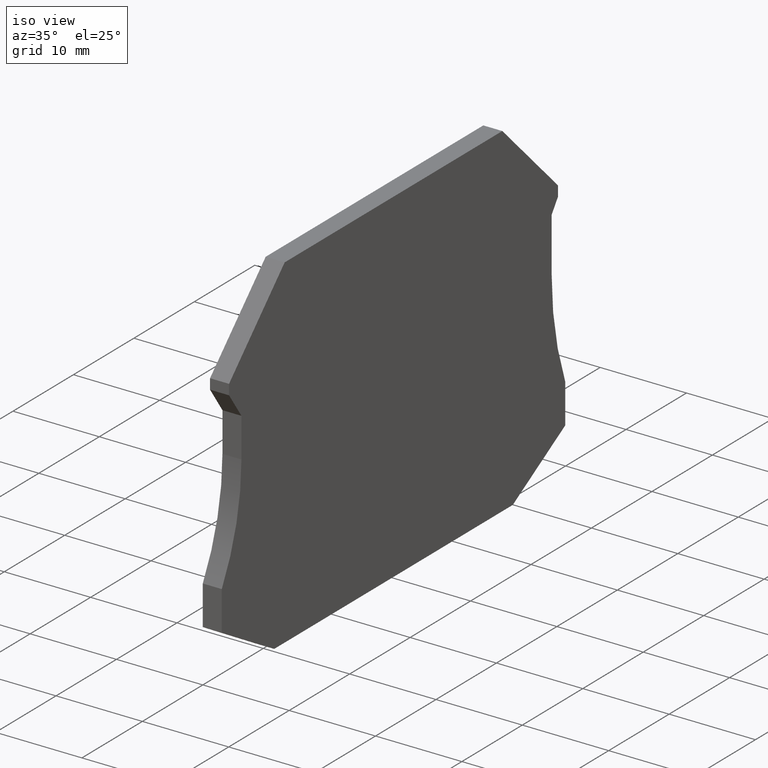
[diagram: clean part render]
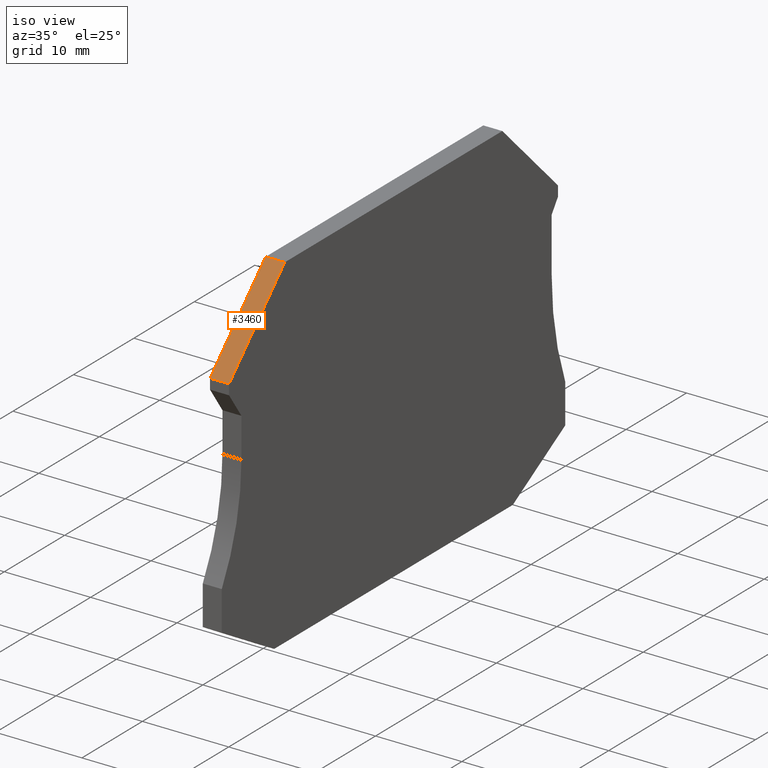
[diagram: same view with one face highlighted and labeled with its STEP entity id]
A machine part, iso view. The second image highlights one B-rep face of the part: STEP entity #3460.
In plain terms, the highlighted planar face has unit normal (-0, -0.7071, 0.7071).
Its self-contained STEP definition (entity closure, byte-faithful):
#850=CARTESIAN_POINT('',(16.3296808260526,-18.4500000000048,
1.58078386397419E-14));
#860=VERTEX_POINT('',#850);
#890=CARTESIAN_POINT('',(34.7796808260532,6.3948846218409E-14,
2.48083819314093E-13));
#900=DIRECTION('',(-0.707106781186466,-0.70710678118663,
-7.43849426498855E-15));
#910=VECTOR('',#900,1.);
#920=LINE('',#890,#910);
#930=CARTESIAN_POINT('',(7.12968082605067,-27.6500000000088,
-8.1682277343663E-14));
#940=VERTEX_POINT('',#930);
#950=EDGE_CURVE('',#860,#940,#920,.T.);
#2970=CARTESIAN_POINT('',(16.3296808260526,-18.4500000000048,
-2.8421709430404E-14));
#2980=DIRECTION('',(1.05655906439322E-14,1.05655906439346E-14,-1.));
#2990=VECTOR('',#2980,1.);
#3000=LINE('',#2970,#2990);
#3010=CARTESIAN_POINT('',(16.3296808260526,-18.4500000000048,
2.19999999999998));
#3020=VERTEX_POINT('',#3010);
#3030=EDGE_CURVE('',#3020,#860,#3000,.T.);
#3230=CARTESIAN_POINT('',(16.3296808260526,-18.4500000000048,
1.09999999999998));
#3240=DIRECTION('',(-0.70710678118663,0.707106781186466,0.));
#3250=DIRECTION('',(0.707106781186466,0.70710678118663,0.));
#3260=AXIS2_PLACEMENT_3D('',#3230,#3240,#3250);
#3270=PLANE('',#3260);
#3280=CARTESIAN_POINT('',(0.893553826060931,-33.886127,2.19999999999998)
);
#3290=DIRECTION('',(0.707106781186466,0.70710678118663,0.));
#3300=VECTOR('',#3290,1.);
#3310=LINE('',#3280,#3300);
#3320=CARTESIAN_POINT('',(7.12968082605067,-27.6500000000088,
2.19999999999998));
#3330=VERTEX_POINT('',#3320);
#3340=EDGE_CURVE('',#3330,#3020,#3310,.T.);
#3350=ORIENTED_EDGE('',*,*,#3340,.T.);
#3360=CARTESIAN_POINT('',(7.12968082605067,-27.6500000000088,
-2.8421709430404E-14));
#3370=DIRECTION('',(0.,0.,-1.));
#3380=VECTOR('',#3370,1.);
#3390=LINE('',#3360,#3380);
#3400=EDGE_CURVE('',#3330,#940,#3390,.T.);
#3410=ORIENTED_EDGE('',*,*,#3400,.F.);
#3420=ORIENTED_EDGE('',*,*,#950,.T.);
#3430=ORIENTED_EDGE('',*,*,#3030,.T.);
#3440=EDGE_LOOP('',(#3430,#3420,#3410,#3350));
#3450=FACE_OUTER_BOUND('',#3440,.T.);
#3460=ADVANCED_FACE('',(#3450),#3270,.T.);